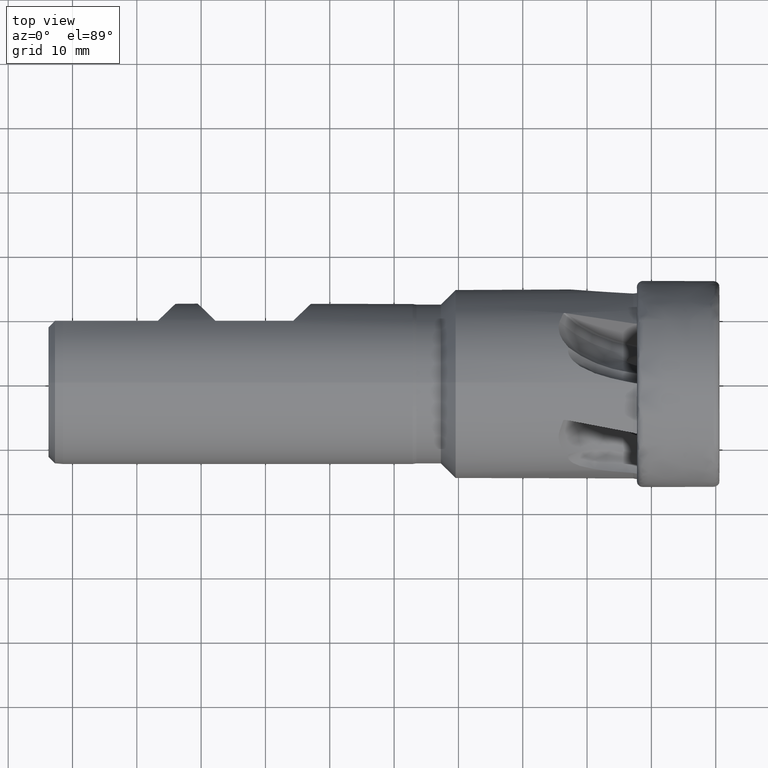
[diagram: clean part render]
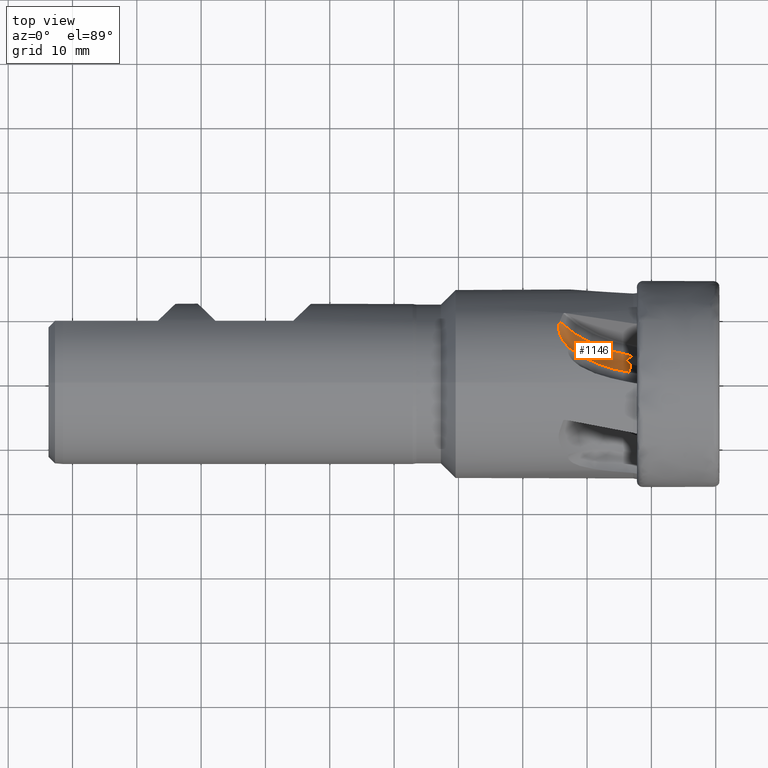
[diagram: same view with one face highlighted and labeled with its STEP entity id]
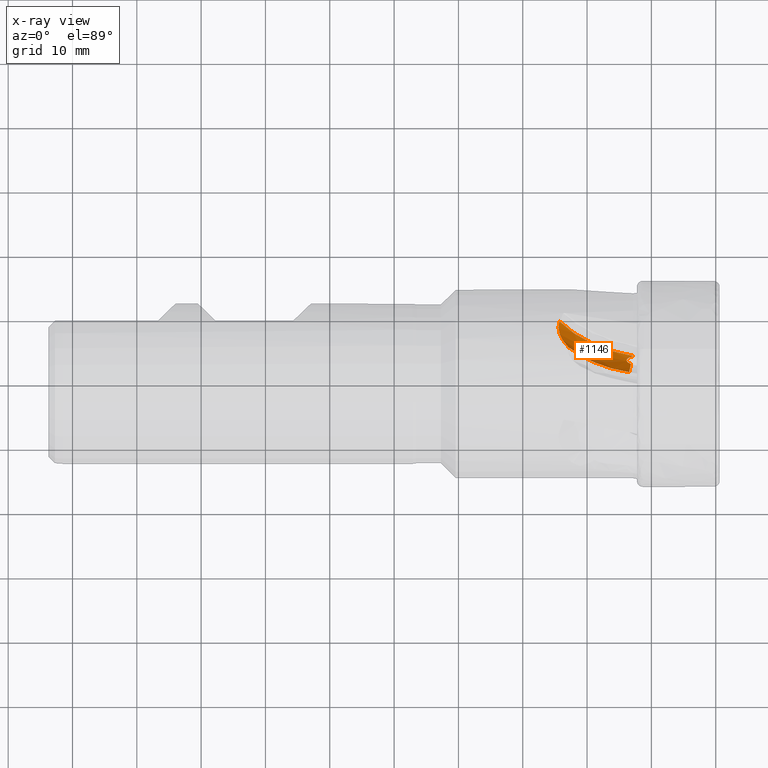
[diagram: x-ray of the same camera — body ghosted, the highlighted face saturated]
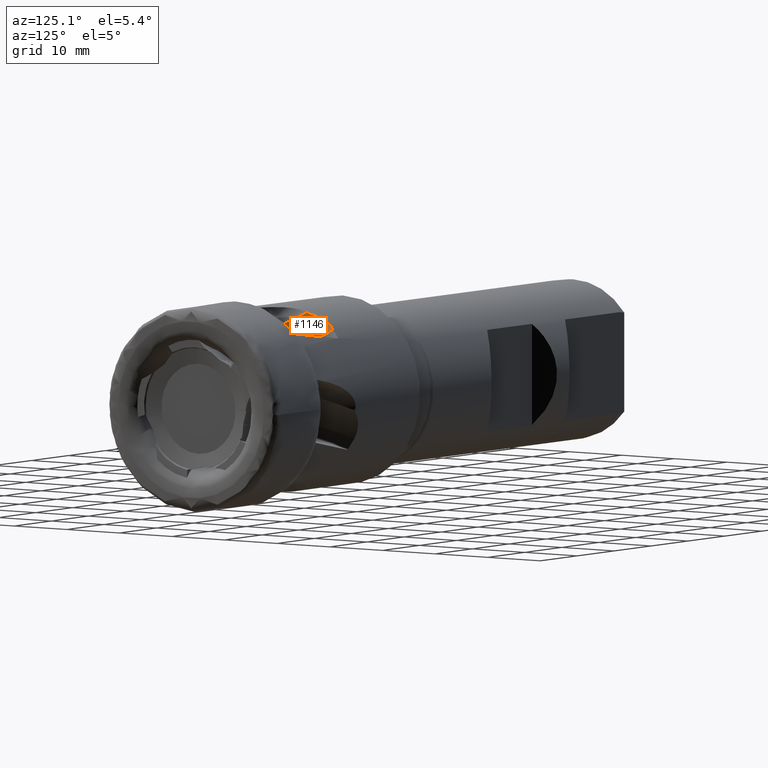
[diagram: same view with one face highlighted and labeled with its STEP entity id]
A machine part, top view. The second image highlights one B-rep face of the part: STEP entity #1146.
The next image is the same camera in x-ray: the body ghosted, the highlighted face saturated — about 0% of this face is hidden behind the body in this view.
A second angle (auxiliary view) of the same face is appended — the face is thin or edge-on in the first view.
In plain terms, the highlighted face is a freeform B-spline surface patch.
Its self-contained STEP definition (entity closure, byte-faithful):
#9 = VERTEX_POINT ( 'NONE', #915 ) ;
#54 = CARTESIAN_POINT ( 'NONE',  ( -24.27315947817303900, 9.518914854034774100, 11.18867105610077000 ) ) ;
#55 = CARTESIAN_POINT ( 'NONE',  ( -22.89364306286559300, 5.467797151866489200, 13.63448914723390500 ) ) ;
#180 = VERTEX_POINT ( 'NONE', #925 ) ;
#361 = B_SPLINE_CURVE_WITH_KNOTS ( 'NONE', 3,
 ( #7293, #7292, #7310, #7311, #7312, #7313, #7314, #7315, #7316, #7317, #7318, #7319, #7320, #7321 ),
 .UNSPECIFIED., .F., .F.,
 ( 4, 2, 2, 2, 2, 2, 4 ),
 ( 0.0000000000000000000, 0.0005890003767068925700, 0.0008835005650603377800, 0.001178000753413783200, 0.001472500941767228500, 0.001767001130120673600, 0.002356001506827564700 ),
 .UNSPECIFIED. ) ;
#566 =( BOUNDED_SURFACE ( )  B_SPLINE_SURFACE ( 3, 3, ( 
 ( #5823, #5816, #5825, #5826 ),
 ( #5827, #5828, #5829, #5830 ),
 ( #5831, #5832, #5833, #5834 ),
 ( #5835, #5836, #5837, #5838 ) ),
 .UNSPECIFIED., .F., .F., .F. ) 
 B_SPLINE_SURFACE_WITH_KNOTS ( ( 4, 4 ),
 ( 4, 4 ),
 ( 0.0000000000000000000, 1.000000000000000000 ),
 ( 0.0000000000000000000, 1.000000000000000000 ),
 .UNSPECIFIED. ) 
 GEOMETRIC_REPRESENTATION_ITEM ( )  RATIONAL_B_SPLINE_SURFACE ( (
 ( 1.000000000000000000, 0.9265900992428043300, 0.9265900992428043300, 1.000000000000000000),
 ( 0.9630438401541431300, 0.8923468874235989100, 0.8923468874235989100, 0.9630438401541431300),
 ( 0.9630438401541431300, 0.8923468874235989100, 0.8923468874235989100, 0.9630438401541431300),
 ( 1.000000000000000000, 0.9265900992428043300, 0.9265900992428043300, 1.000000000000000000) ) ) 
 REPRESENTATION_ITEM ( '' )  SURFACE ( )  );
#613 = B_SPLINE_CURVE_WITH_KNOTS ( 'NONE', 3,
 ( #4162, #4163, #4188, #4189, #4190, #4191, #4192, #4193, #4194, #4195, #4196, #4197, #4198, #4199 ),
 .UNSPECIFIED., .F., .F.,
 ( 4, 2, 2, 2, 2, 2, 4 ),
 ( 1.933652613862048600E-017, 0.001289998783290493800, 0.001934998174935734800, 0.002579997566580976300, 0.003224996958226217100, 0.003869996349871460500, 0.005159995133161951600 ),
 .UNSPECIFIED. ) ;
#688 = VERTEX_POINT ( 'NONE', #54 ) ;
#689 = VERTEX_POINT ( 'NONE', #55 ) ;
#896 = EDGE_CURVE ( 'NONE', #689, #688, #613, .T. ) ;
#915 = CARTESIAN_POINT ( 'NONE',  ( -12.95779832539634100, 4.232502894386795100, 8.004442042810939700 ) ) ;
#925 = CARTESIAN_POINT ( 'NONE',  ( -12.97269473970634500, 4.134979024877596400, 8.076616515919457800 ) ) ;
#1146 = ADVANCED_FACE ( 'NONE', ( #3080 ), #566, .T. ) ;
#1231 = VERTEX_POINT ( 'NONE', #6206 ) ;
#1233 = VERTEX_POINT ( 'NONE', #6208 ) ;
#1649 = ORIENTED_EDGE ( 'NONE', *, *, #1917, .F. ) ;
#1650 = ORIENTED_EDGE ( 'NONE', *, *, #1800, .T. ) ;
#1651 = ORIENTED_EDGE ( 'NONE', *, *, #1918, .T. ) ;
#1652 = ORIENTED_EDGE ( 'NONE', *, *, #896, .F. ) ;
#1653 = ORIENTED_EDGE ( 'NONE', *, *, #1919, .F. ) ;
#1654 = ORIENTED_EDGE ( 'NONE', *, *, #1920, .T. ) ;
#1800 = EDGE_CURVE ( 'NONE', #180, #9, #3154, .T. ) ;
#1917 = EDGE_CURVE ( 'NONE', #180, #1233, #361, .T. ) ;
#1918 = EDGE_CURVE ( 'NONE', #9, #688, #6877, .T. ) ;
#1919 = EDGE_CURVE ( 'NONE', #1231, #689, #6880, .T. ) ;
#1920 = EDGE_CURVE ( 'NONE', #1231, #1233, #6875, .T. ) ;
#2501 = EDGE_LOOP ( 'NONE', ( #1649, #1650, #1651, #1652, #1653, #1654 ) ) ;
#3080 = FACE_OUTER_BOUND ( 'NONE', #2501, .T. ) ;
#3154 = CIRCLE ( 'NONE', #5627, 6.999999999999999100 ) ;
#4162 = CARTESIAN_POINT ( 'NONE',  ( -22.89364306286559300, 5.467797151866489200, 13.63448914723390500 ) ) ;
#4163 = CARTESIAN_POINT ( 'NONE',  ( -23.18524165954161400, 5.766217197148884900, 13.51481467640961400 ) ) ;
#4188 = CARTESIAN_POINT ( 'NONE',  ( -23.44620425067854100, 6.079997753832914900, 13.37779355254346600 ) ) ;
#4189 = CARTESIAN_POINT ( 'NONE',  ( -23.78156323215604200, 6.577032776753429600, 13.13669091167113500 ) ) ;
#4190 = CARTESIAN_POINT ( 'NONE',  ( -23.88450003517210300, 6.748254031493939200, 13.04974345095285800 ) ) ;
#4191 = CARTESIAN_POINT ( 'NONE',  ( -24.06576715796693100, 7.095004002492819600, 12.86451144870539500 ) ) ;
#4192 = CARTESIAN_POINT ( 'NONE',  ( -24.14376847742740400, 7.269571023237149100, 12.76679204122190300 ) ) ;
#4193 = CARTESIAN_POINT ( 'NONE',  ( -24.27314842872564800, 7.620973462676062100, 12.56019129499561000 ) ) ;
#4194 = CARTESIAN_POINT ( 'NONE',  ( -24.32454006834720400, 7.797807135048846500, 12.45131434661180600 ) ) ;
#4195 = CARTESIAN_POINT ( 'NONE',  ( -24.39833186675187400, 8.153795035072183900, 12.22115590276108100 ) ) ;
#4196 = CARTESIAN_POINT ( 'NONE',  ( -24.42064136934672900, 8.334611188843208400, 12.09863474270159300 ) ) ;
#4197 = CARTESIAN_POINT ( 'NONE',  ( -24.43859344315837100, 8.862503338077207400, 11.72341928826893000 ) ) ;
#4198 = CARTESIAN_POINT ( 'NONE',  ( -24.38775074890988400, 9.198350955838330700, 11.46139517471271100 ) ) ;
#4199 = CARTESIAN_POINT ( 'NONE',  ( -24.27315947817303900, 9.518914854034774100, 11.18867105610077000 ) ) ;
#5627 = AXIS2_PLACEMENT_3D ( 'NONE', #6397, #6398, #6399 ) ;
#5658 = AXIS2_PLACEMENT_3D ( 'NONE', #7322, #7323, #7324 ) ;
#5659 = AXIS2_PLACEMENT_3D ( 'NONE', #7325, #7326, #7327 ) ;
#5660 = AXIS2_PLACEMENT_3D ( 'NONE', #7329, #7330, #7331 ) ;
#5816 = CARTESIAN_POINT ( 'NONE',  ( -17.59851276920550200, 2.238933843485472900, 11.10518002561086000 ) ) ;
#5823 = CARTESIAN_POINT ( 'NONE',  ( -13.48691941373246600, 1.633217868833756000, 11.75832950132437000 ) ) ;
#5825 = CARTESIAN_POINT ( 'NONE',  ( -21.33427648852830000, 3.918285312346123600, 12.06567160692236000 ) ) ;
#5826 = CARTESIAN_POINT ( 'NONE',  ( -23.87148444003739200, 6.301429201419175300, 14.42827547027228400 ) ) ;
#5827 = CARTESIAN_POINT ( 'NONE',  ( -13.33483031005794900, 2.055300843938096200, 10.23193181637222400 ) ) ;
#5828 = CARTESIAN_POINT ( 'NONE',  ( -17.76322702743501500, 2.736478520402143100, 9.568083136967121800 ) ) ;
#5829 = CARTESIAN_POINT ( 'NONE',  ( -21.76497969660199100, 4.567087924911783500, 10.64057573156748900 ) ) ;
#5830 = CARTESIAN_POINT ( 'NONE',  ( -24.45878351866371500, 7.143974493336295400, 13.21321487537601200 ) ) ;
#5831 = CARTESIAN_POINT ( 'NONE',  ( -13.15168839194474700, 2.954977790848668700, 8.932618361125875600 ) ) ;
#5832 = CARTESIAN_POINT ( 'NONE',  ( -17.74778299508176400, 3.690261042672121400, 8.282596234748485400 ) ) ;
#5833 = CARTESIAN_POINT ( 'NONE',  ( -21.87958542526257200, 5.611690455751984000, 9.433062885582367900 ) ) ;
#5834 = CARTESIAN_POINT ( 'NONE',  ( -24.63715006344345000, 8.296110202509806800, 12.13065138564097700 ) ) ;
#5835 = CARTESIAN_POINT ( 'NONE',  ( -12.95779832539367100, 4.232502894386497500, 8.004442042811188400 ) ) ;
#5836 = CARTESIAN_POINT ( 'NONE',  ( -17.55389292853067900, 4.994536992241828300, 7.391239297269388300 ) ) ;
#5837 = CARTESIAN_POINT ( 'NONE',  ( -21.66538751162714900, 6.936279410551374100, 8.577008182223433900 ) ) ;
#5838 = CARTESIAN_POINT ( 'NONE',  ( -24.38680884675648700, 9.630100794642711300, 11.30060716917697900 ) ) ;
#6206 = CARTESIAN_POINT ( 'NONE',  ( -13.48691941373483300, 1.633217868834104100, 11.75832950132399700 ) ) ;
#6208 = CARTESIAN_POINT ( 'NONE',  ( -13.17126352242178200, 2.956892845436469100, 9.206487014744652700 ) ) ;
#6397 = CARTESIAN_POINT ( 'NONE',  ( -12.95779832539634100, 8.346999660434153900, 13.66756100343553500 ) ) ;
#6398 = DIRECTION ( 'NONE',  ( 0.9925461516413238700, -0.09859436990806930100, 0.07163300276010559100 ) ) ;
#6399 = DIRECTION ( 'NONE',  ( 0.1218693434051341000, 0.8029867043792795500, -0.5834039901544254600 ) ) ;
#6875 = CIRCLE ( 'NONE', #5660, 6.999999999999999100 ) ;
#6877 = CIRCLE ( 'NONE', #5658, 14.31678998358764500 ) ;
#6880 = CIRCLE ( 'NONE', #5659, 12.81766436282798200 ) ;
#7292 = CARTESIAN_POINT ( 'NONE',  ( -13.16038277261538000, 4.083100253869106100, 8.114074730014508000 ) ) ;
#7293 = CARTESIAN_POINT ( 'NONE',  ( -12.97269473970634500, 4.134979024877596400, 8.076616515919457800 ) ) ;
#7310 = CARTESIAN_POINT ( 'NONE',  ( -13.34042349290073500, 4.022340342979201300, 8.164560651155946800 ) ) ;
#7311 = CARTESIAN_POINT ( 'NONE',  ( -13.58289651789278600, 3.894292052149814800, 8.281524327185270100 ) ) ;
#7312 = CARTESIAN_POINT ( 'NONE',  ( -13.65822342724821300, 3.845240714541678700, 8.327645604573367800 ) ) ;
#7313 = CARTESIAN_POINT ( 'NONE',  ( -13.77896642310539100, 3.730741486512856300, 8.437348243206336900 ) ) ;
#7314 = CARTESIAN_POINT ( 'NONE',  ( -13.82338732996557200, 3.664709685048138400, 8.501491861264026900 ) ) ;
#7315 = CARTESIAN_POINT ( 'NONE',  ( -13.85444976358326700, 3.524523581237736000, 8.638264218411432400 ) ) ;
#7316 = CARTESIAN_POINT ( 'NONE',  ( -13.83973044070253700, 3.451057153574407500, 8.710171388279107400 ) ) ;
#7317 = CARTESIAN_POINT ( 'NONE',  ( -13.76571150715264500, 3.318946614654218600, 8.839791072266212500 ) ) ;
#7318 = CARTESIAN_POINT ( 'NONE',  ( -13.70861319989525000, 3.259670300272860600, 8.898163355155777100 ) ) ;
#7319 = CARTESIAN_POINT ( 'NONE',  ( -13.51100899160053700, 3.102260900103823700, 9.054561186363578400 ) ) ;
#7320 = CARTESIAN_POINT ( 'NONE',  ( -13.34551348075254900, 3.022394972886876200, 9.136041227906352100 ) ) ;
#7321 = CARTESIAN_POINT ( 'NONE',  ( -13.17126352242178200, 2.956892845436469100, 9.206487014744652700 ) ) ;
#7322 = CARTESIAN_POINT ( 'NONE',  ( -13.10138058229298100, 12.67194924956511100, 19.56842080393495200 ) ) ;
#7323 = DIRECTION ( 'NONE',  ( 0.2079116908177434900, 0.7913380320007276100, -0.5749407342766058600 ) ) ;
#7324 = DIRECTION ( 'NONE',  ( 0.0000000000000000000, 0.5877852522924799100, 0.8090169943749424600 ) ) ;
#7325 = CARTESIAN_POINT ( 'NONE',  ( -14.00063739329937300, 9.249264780566907300, 22.05514663060563800 ) ) ;
#7326 = DIRECTION ( 'NONE',  ( 0.2079116908177434900, 0.7913380320007276100, -0.5749407342766058600 ) ) ;
#7327 = DIRECTION ( 'NONE',  ( 0.0000000000000000000, 0.5877852522924799100, 0.8090169943749424600 ) ) ;
#7329 = CARTESIAN_POINT ( 'NONE',  ( -12.95779832539634100, 8.346999660434153900, 13.66756100343553500 ) ) ;
#7330 = DIRECTION ( 'NONE',  ( 0.9925461516413238700, -0.09859436990806930100, 0.07163300276010559100 ) ) ;
#7331 = DIRECTION ( 'NONE',  ( 0.1218693434051341000, 0.8029867043792795500, -0.5834039901544254600 ) ) ;